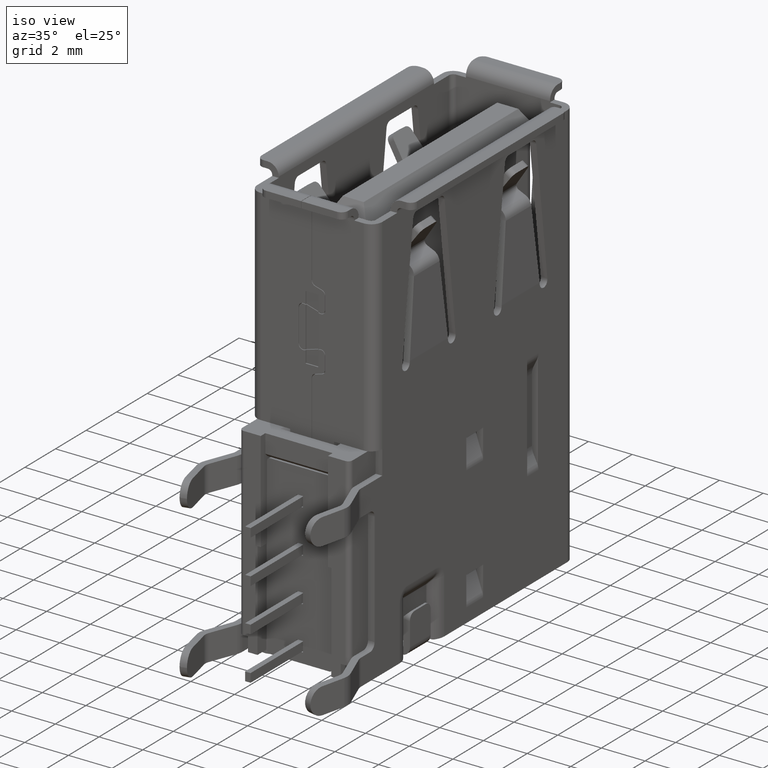
[diagram: clean part render]
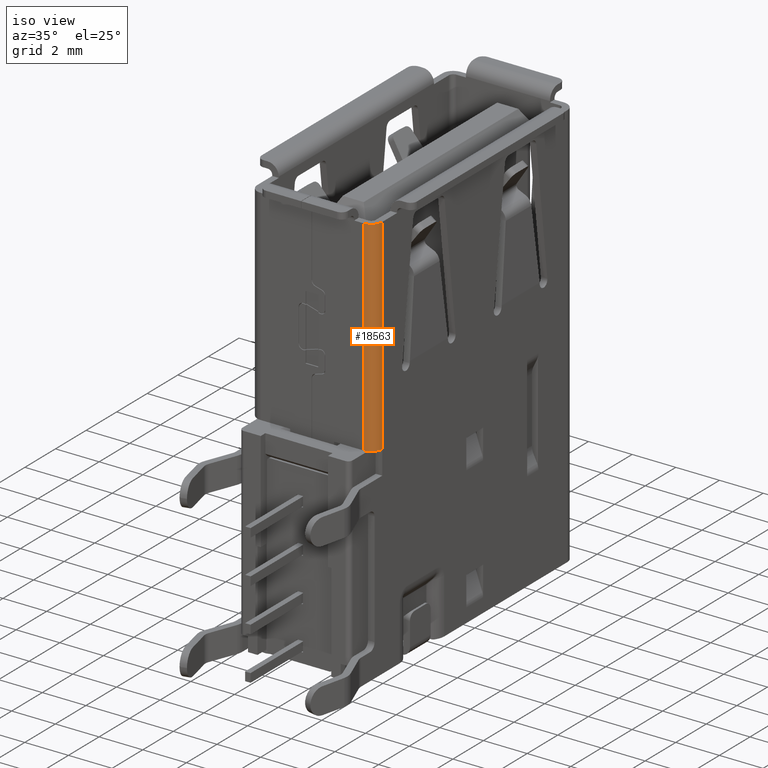
[diagram: same view with one face highlighted and labeled with its STEP entity id]
A machine part, iso view. The second image highlights one B-rep face of the part: STEP entity #18563.
In plain terms, the highlighted cylindrical surface (edge-blend (fillet) strip) has radius 0.5 mm, axis along (-0, 0, -1).
Its self-contained STEP definition (entity closure, byte-faithful):
#2380 = CIRCLE ( 'NONE', #35294, 0.5000000000000000000 ) ;
#3320 = EDGE_LOOP ( 'NONE', ( #38339, #20436, #43251, #32990 ) ) ;
#4711 = DIRECTION ( 'NONE',  ( 1.000000000000000000, 0.0000000000000000000, 0.0000000000000000000 ) ) ;
#5649 = VERTEX_POINT ( 'NONE', #38674 ) ;
#6320 = LINE ( 'NONE', #42540, #12020 ) ;
#8556 = DIRECTION ( 'NONE',  ( 0.0000000000000000000, 0.0000000000000000000, -1.000000000000000000 ) ) ;
#8909 = VERTEX_POINT ( 'NONE', #11982 ) ;
#9143 = LINE ( 'NONE', #20163, #44022 ) ;
#9699 = DIRECTION ( 'NONE',  ( 1.000000000000000000, 0.0000000000000000000, 0.0000000000000000000 ) ) ;
#11982 = CARTESIAN_POINT ( 'NONE',  ( -9.300000000000000711, -6.550000000000000711, -0.4999999999614750390 ) ) ;
#12020 = VECTOR ( 'NONE', #9699, 1000.000000000000000 ) ;
#14714 = CIRCLE ( 'NONE', #28524, 0.5000000000000000000 ) ;
#15988 = FACE_OUTER_BOUND ( 'NONE', #3320, .T. ) ;
#18563 = ADVANCED_FACE ( 'NONE', ( #15988 ), #30631, .T. ) ;
#20163 = CARTESIAN_POINT ( 'NONE',  ( -9.375000000000000000, -6.049999999887499591, 0.0000000000000000000 ) ) ;
#20436 = ORIENTED_EDGE ( 'NONE', *, *, #30160, .F. ) ;
#23518 = DIRECTION ( 'NONE',  ( 1.000000000000000000, 0.0000000000000000000, -0.0000000000000000000 ) ) ;
#23743 = EDGE_CURVE ( 'NONE', #5649, #8909, #6320, .T. ) ;
#25263 = CARTESIAN_POINT ( 'NONE',  ( -18.69999999895999920, -6.049999999943749707, 0.0000000000000000000 ) ) ;
#26441 = DIRECTION ( 'NONE',  ( 0.0000000000000000000, 0.0000000000000000000, -1.000000000000000000 ) ) ;
#28524 = AXIS2_PLACEMENT_3D ( 'NONE', #38054, #4711, #8556 ) ;
#30160 = EDGE_CURVE ( 'NONE', #33349, #42499, #9143, .T. ) ;
#30631 = CYLINDRICAL_SURFACE ( 'NONE', #31729, 0.5000000000000000000 ) ;
#31729 = AXIS2_PLACEMENT_3D ( 'NONE', #45256, #38065, #45498 ) ;
#32939 = CARTESIAN_POINT ( 'NONE',  ( -9.300000000000000711, -6.049999999999999822, -0.5000000000000000000 ) ) ;
#32990 = ORIENTED_EDGE ( 'NONE', *, *, #23743, .T. ) ;
#33349 = VERTEX_POINT ( 'NONE', #25263 ) ;
#35294 = AXIS2_PLACEMENT_3D ( 'NONE', #32939, #44660, #26441 ) ;
#38054 = CARTESIAN_POINT ( 'NONE',  ( -18.69999999895999920, -6.049999999999999822, -0.5000000000000000000 ) ) ;
#38065 = DIRECTION ( 'NONE',  ( 1.000000000000000000, 0.0000000000000000000, 0.0000000000000000000 ) ) ;
#38339 = ORIENTED_EDGE ( 'NONE', *, *, #38598, .T. ) ;
#38598 = EDGE_CURVE ( 'NONE', #8909, #42499, #2380, .T. ) ;
#38674 = CARTESIAN_POINT ( 'NONE',  ( -18.69999999990333706, -6.550000000000000711, -0.4999999999614749280 ) ) ;
#39985 = CARTESIAN_POINT ( 'NONE',  ( -9.300000000282501844, -6.049999999678375318, 0.0000000000000000000 ) ) ;
#42499 = VERTEX_POINT ( 'NONE', #39985 ) ;
#42540 = CARTESIAN_POINT ( 'NONE',  ( -18.88800000000000168, -6.550000000000000711, -0.4999999999229499670 ) ) ;
#42552 = EDGE_CURVE ( 'NONE', #33349, #5649, #14714, .T. ) ;
#43251 = ORIENTED_EDGE ( 'NONE', *, *, #42552, .T. ) ;
#44022 = VECTOR ( 'NONE', #23518, 1000.000000000000000 ) ;
#44660 = DIRECTION ( 'NONE',  ( -1.000000000000000000, -0.0000000000000000000, -0.0000000000000000000 ) ) ;
#45256 = CARTESIAN_POINT ( 'NONE',  ( -18.88800000000000168, -6.049999999999999822, -0.5000000000000000000 ) ) ;
#45498 = DIRECTION ( 'NONE',  ( 0.0000000000000000000, 0.0000000000000000000, -1.000000000000000000 ) ) ;